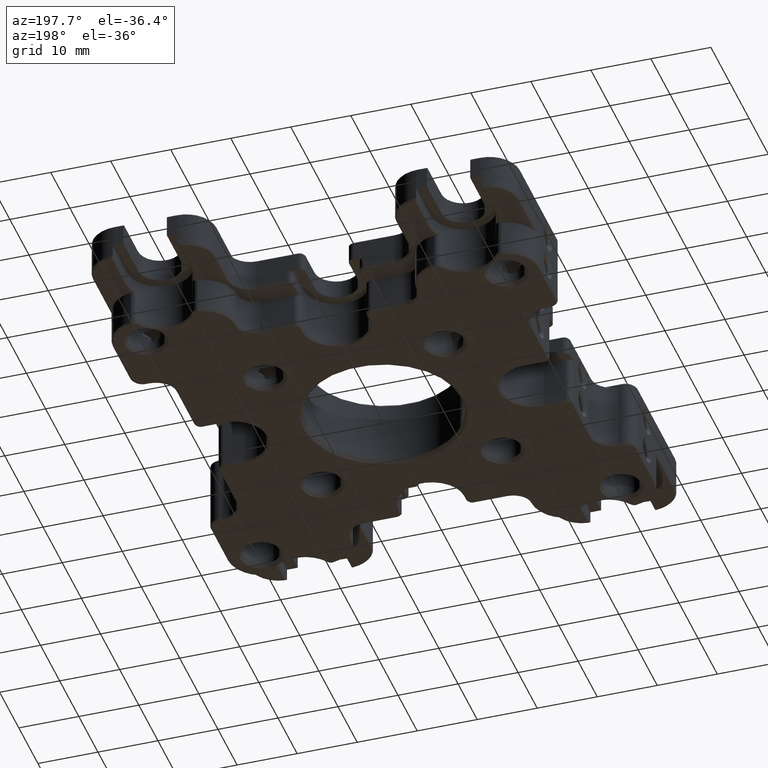
[diagram: clean part render]
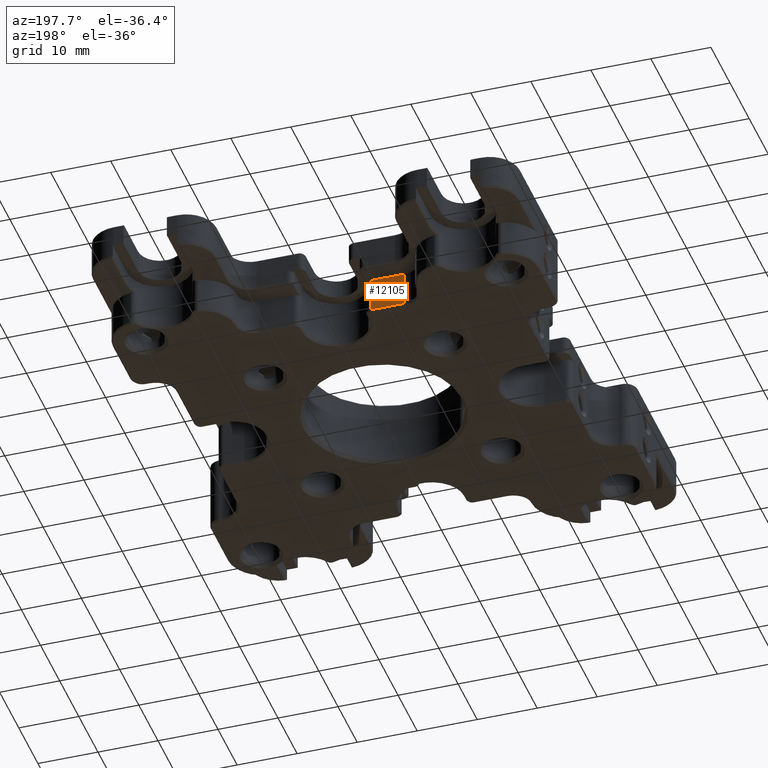
[diagram: same view with one face highlighted and labeled with its STEP entity id]
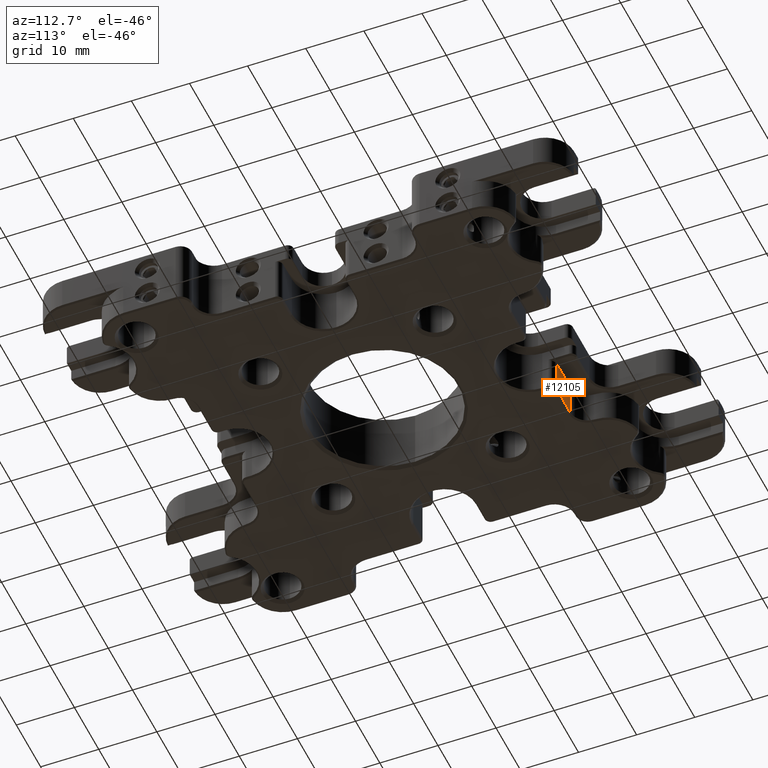
[diagram: same view with one face highlighted and labeled with its STEP entity id]
A machine part, auxiliary view. The second image highlights one B-rep face of the part: STEP entity #12105.
A second angle (auxiliary view) of the same face is appended — the face is thin or edge-on in the first view.
In plain terms, the highlighted planar face has unit normal (-0, 1, -0).
Its self-contained STEP definition (entity closure, byte-faithful):
#265 = CARTESIAN_POINT ( 'NONE',  ( -12.00000000000000000, 27.00000000000000711, -2.640412542922759415E-15 ) ) ;
#953 = DIRECTION ( 'NONE',  ( -5.551115123125782702E-17, -1.224646799147352468E-16, -1.000000000000000000 ) ) ;
#2373 = CARTESIAN_POINT ( 'NONE',  ( 15.00000000000000178, 27.00000000000000711, -4.139213626166721139E-15 ) ) ;
#2514 = VECTOR ( 'NONE', #18578, 1000.000000000000000 ) ;
#2549 = VERTEX_POINT ( 'NONE', #4165 ) ;
#2845 = DIRECTION ( 'NONE',  ( -1.785374792092216227E-32, 1.000000000000000000, -1.224646799147352468E-16 ) ) ;
#2947 = DIRECTION ( 'NONE',  ( -5.551115123125782702E-17, -1.224646799147352468E-16, -1.000000000000000000 ) ) ;
#4162 = VERTEX_POINT ( 'NONE', #23861 ) ;
#4165 = CARTESIAN_POINT ( 'NONE',  ( -11.99999999999999467, 27.00000000000000711, -2.640412542922759809E-15 ) ) ;
#5237 = FACE_OUTER_BOUND ( 'NONE', #9134, .T. ) ;
#5269 = CARTESIAN_POINT ( 'NONE',  ( -6.400000000000099831, 27.00000000000000711, -5.750000000000007994 ) ) ;
#5548 = ORIENTED_EDGE ( 'NONE', *, *, #25366, .T. ) ;
#6624 = DIRECTION ( 'NONE',  ( 1.000000000000000000, -4.622231866529366732E-33, -5.551115123125782702E-17 ) ) ;
#6734 = LINE ( 'NONE', #265, #22607 ) ;
#7706 = LINE ( 'NONE', #2373, #27720 ) ;
#7792 = ORIENTED_EDGE ( 'NONE', *, *, #26467, .T. ) ;
#7946 = AXIS2_PLACEMENT_3D ( 'NONE', #18675, #2845, #2947 ) ;
#8391 = VERTEX_POINT ( 'NONE', #16855 ) ;
#9134 = EDGE_LOOP ( 'NONE', ( #7792, #5548, #26469, #28106 ) ) ;
#9569 = CARTESIAN_POINT ( 'NONE',  ( 15.00000000000000178, 27.00000000000000711, -5.750000000000004441 ) ) ;
#12105 = ADVANCED_FACE ( 'NONE', ( #5237 ), #20540, .T. ) ;
#16170 = EDGE_CURVE ( 'NONE', #4162, #2549, #6734, .T. ) ;
#16629 = EDGE_CURVE ( 'NONE', #2549, #8391, #7706, .T. ) ;
#16855 = CARTESIAN_POINT ( 'NONE',  ( -6.400000000000092726, 27.00000000000000711, -2.951274989817798592E-15 ) ) ;
#16926 = LINE ( 'NONE', #9569, #2514 ) ;
#17044 = CARTESIAN_POINT ( 'NONE',  ( -6.400000000000099831, 27.00000000000000711, -6.000000000000002665 ) ) ;
#18223 = DIRECTION ( 'NONE',  ( 5.551115123125782702E-17, 1.224646799147352468E-16, 1.000000000000000000 ) ) ;
#18578 = DIRECTION ( 'NONE',  ( -1.000000000000000000, 4.622231866529366047E-33, 5.551115123125782702E-17 ) ) ;
#18675 = CARTESIAN_POINT ( 'NONE',  ( 15.00000000000000178, 27.00000000000000711, -4.139213626166721139E-15 ) ) ;
#20540 = PLANE ( 'NONE',  #7946 ) ;
#22060 = LINE ( 'NONE', #17044, #27250 ) ;
#22607 = VECTOR ( 'NONE', #18223, 1000.000000000000000 ) ;
#23861 = CARTESIAN_POINT ( 'NONE',  ( -12.00000000000000000, 27.00000000000000711, -5.750000000000007994 ) ) ;
#24708 = VERTEX_POINT ( 'NONE', #5269 ) ;
#25366 = EDGE_CURVE ( 'NONE', #24708, #4162, #16926, .T. ) ;
#26467 = EDGE_CURVE ( 'NONE', #8391, #24708, #22060, .T. ) ;
#26469 = ORIENTED_EDGE ( 'NONE', *, *, #16170, .T. ) ;
#27250 = VECTOR ( 'NONE', #953, 1000.000000000000000 ) ;
#27720 = VECTOR ( 'NONE', #6624, 1000.000000000000000 ) ;
#28106 = ORIENTED_EDGE ( 'NONE', *, *, #16629, .T. ) ;